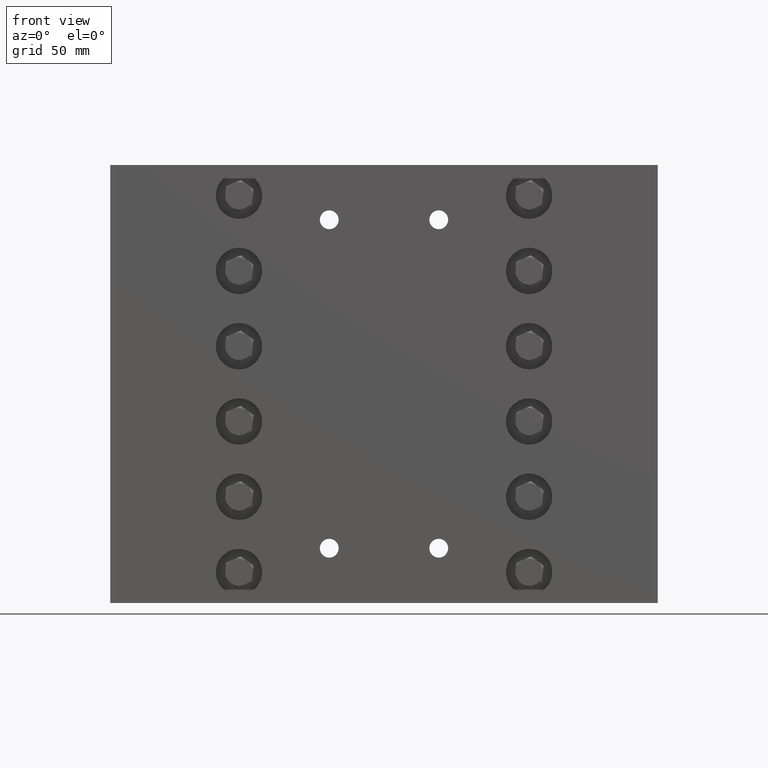
[diagram: clean part render]
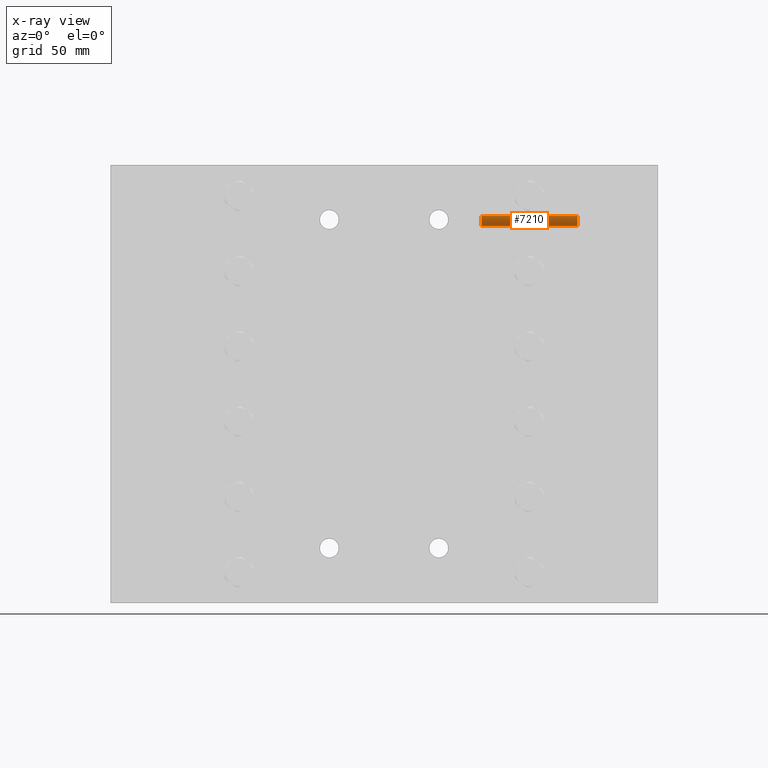
[diagram: x-ray — body ghosted, one internal face saturated and labeled with its STEP entity id]
A machine part, front view, then the same camera in x-ray: the body is ghosted and one INTERNAL B-rep face — a face not visible from any outside direction — is saturated and labeled: STEP entity #7210.
In plain terms, the highlighted cylindrical surface (edge-blend (fillet) strip) has radius 4.7498 mm, axis along (1, -0, -0).
Its self-contained STEP definition (entity closure, byte-faithful):
#966 = VERTEX_POINT ( 'NONE', #4232 ) ;
#1847 = ORIENTED_EDGE ( 'NONE', *, *, #16371, .F. ) ;
#1907 = CARTESIAN_POINT ( 'NONE',  ( 1.783000000000000600, 1.681401685055768700, 2.883116447379934700 ) ) ;
#2167 = ORIENTED_EDGE ( 'NONE', *, *, #41257, .T. ) ;
#2491 = DIRECTION ( 'NONE',  ( 1.000000000000000000, -4.013100011697571400E-018, -2.255140518769849200E-017 ) ) ;
#4232 = CARTESIAN_POINT ( 'NONE',  ( 3.533000000000000400, 1.501000000000000100, 3.070000000000000300 ) ) ;
#5968 = DIRECTION ( 'NONE',  ( 1.000000000000000000, -4.013100011697571400E-018, -2.255140518769849200E-017 ) ) ;
#6441 = CARTESIAN_POINT ( 'NONE',  ( 1.783000000000000600, 1.501000000000000100, 3.070000000000000300 ) ) ;
#7210 = ADVANCED_FACE ( 'NONE', ( #31494 ), #25703, .T. ) ;
#12822 = DIRECTION ( 'NONE',  ( 1.000000000000000000, -4.013100011697571400E-018, -2.255140518769849200E-017 ) ) ;
#13328 = AXIS2_PLACEMENT_3D ( 'NONE', #40913, #40812, #40802 ) ;
#15497 = AXIS2_PLACEMENT_3D ( 'NONE', #17238, #17118, #17082 ) ;
#16371 = EDGE_CURVE ( 'NONE', #33269, #966, #35508, .T. ) ;
#17082 = DIRECTION ( 'NONE',  ( 0.0000000000000000000, 1.460881280034365900E-015, -1.000000000000000000 ) ) ;
#17118 = DIRECTION ( 'NONE',  ( -1.000000000000000000, 4.013100011697571400E-018, 2.255140518769849200E-017 ) ) ;
#17238 = CARTESIAN_POINT ( 'NONE',  ( 3.533000000000000400, 1.688000000000000200, 3.069999999999999800 ) ) ;
#17452 = CARTESIAN_POINT ( 'NONE',  ( 3.533000000000000400, 1.681401685055768700, 2.883116447379934700 ) ) ;
#17877 = AXIS2_PLACEMENT_3D ( 'NONE', #39258, #12822, #39215 ) ;
#18244 = VERTEX_POINT ( 'NONE', #32375 ) ;
#18414 = VECTOR ( 'NONE', #5968, 39.37007874015748100 ) ;
#19470 = LINE ( 'NONE', #1907, #42772 ) ;
#19680 = ORIENTED_EDGE ( 'NONE', *, *, #38456, .F. ) ;
#24998 = ORIENTED_EDGE ( 'NONE', *, *, #33703, .T. ) ;
#25703 = CYLINDRICAL_SURFACE ( 'NONE', #17877, 0.1869999999999999400 ) ;
#27424 = CARTESIAN_POINT ( 'NONE',  ( 1.783000000000000600, 1.501000000000000100, 3.070000000000000300 ) ) ;
#27730 = CIRCLE ( 'NONE', #13328, 0.1869999999999999400 ) ;
#31494 = FACE_OUTER_BOUND ( 'NONE', #35954, .T. ) ;
#32375 = CARTESIAN_POINT ( 'NONE',  ( 1.783000000000000600, 1.681401685055768700, 2.883116447379934700 ) ) ;
#33269 = VERTEX_POINT ( 'NONE', #27424 ) ;
#33512 = VERTEX_POINT ( 'NONE', #17452 ) ;
#33703 = EDGE_CURVE ( 'NONE', #18244, #33512, #19470, .T. ) ;
#35046 = CIRCLE ( 'NONE', #15497, 0.1869999999999999400 ) ;
#35508 = LINE ( 'NONE', #6441, #18414 ) ;
#35954 = EDGE_LOOP ( 'NONE', ( #2167, #1847, #19680, #24998 ) ) ;
#38456 = EDGE_CURVE ( 'NONE', #18244, #33269, #27730, .T. ) ;
#39215 = DIRECTION ( 'NONE',  ( 0.0000000000000000000, 1.460881280034365900E-015, -1.000000000000000000 ) ) ;
#39258 = CARTESIAN_POINT ( 'NONE',  ( 1.783000000000000600, 1.688000000000000200, 3.069999999999999800 ) ) ;
#40802 = DIRECTION ( 'NONE',  ( 0.0000000000000000000, 1.460881280034365900E-015, -1.000000000000000000 ) ) ;
#40812 = DIRECTION ( 'NONE',  ( -1.000000000000000000, 4.013100011697571400E-018, 2.255140518769849200E-017 ) ) ;
#40913 = CARTESIAN_POINT ( 'NONE',  ( 1.783000000000000600, 1.688000000000000200, 3.069999999999999800 ) ) ;
#41257 = EDGE_CURVE ( 'NONE', #33512, #966, #35046, .T. ) ;
#42772 = VECTOR ( 'NONE', #2491, 39.37007874015748100 ) ;